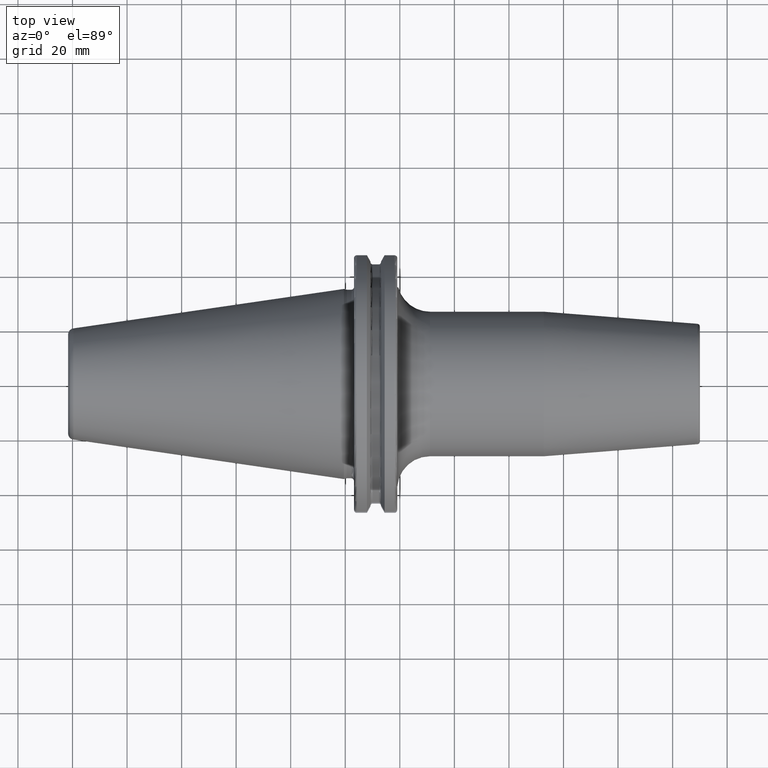
[diagram: clean part render]
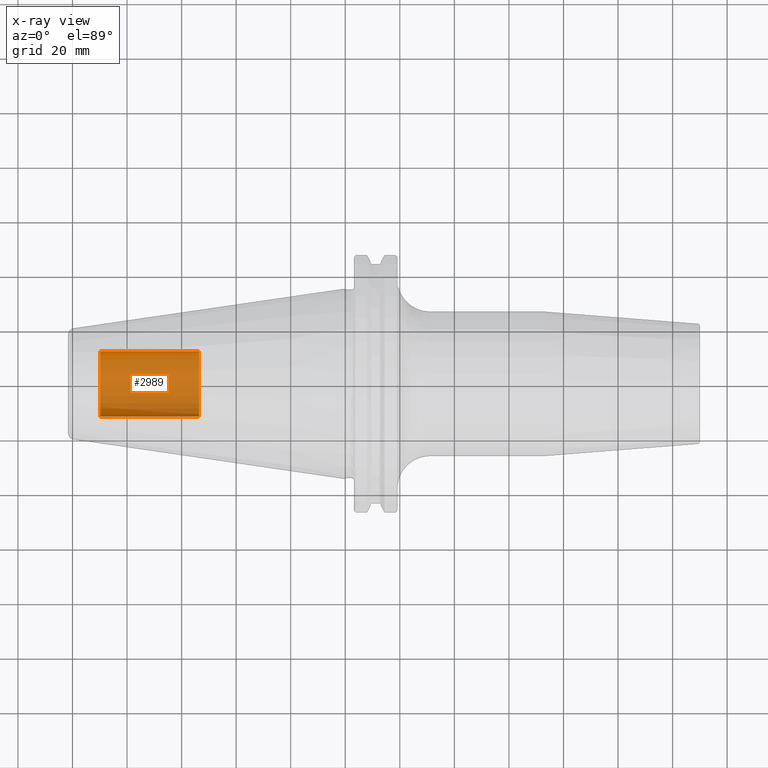
[diagram: x-ray — body ghosted, one internal face saturated and labeled with its STEP entity id]
A machine part, top view, then the same camera in x-ray: the body is ghosted and one INTERNAL B-rep face — a face not visible from any outside direction — is saturated and labeled: STEP entity #2989.
In plain terms, the highlighted cylindrical surface (edge-blend (fillet) strip) has radius 12.0032 mm, axis along (1, 0, 0).
Its self-contained STEP definition (entity closure, byte-faithful):
#2924=CARTESIAN_POINT('',(-8.985E1,0.E0,0.E0));
#2925=DIRECTION('',(-1.E0,0.E0,0.E0));
#2926=DIRECTION('',(0.E0,1.E0,0.E0));
#2927=AXIS2_PLACEMENT_3D('',#2924,#2925,#2926);
#2929=DIRECTION('',(1.E0,0.E0,0.E0));
#2930=VECTOR('',#2929,3.625E1);
#2931=CARTESIAN_POINT('',(-8.985E1,-1.200325E1,0.E0));
#2932=LINE('',#2931,#2930);
#2938=DIRECTION('',(1.E0,0.E0,0.E0));
#2939=VECTOR('',#2938,3.625E1);
#2940=CARTESIAN_POINT('',(-8.985E1,1.200325E1,0.E0));
#2941=LINE('',#2940,#2939);
#2947=CARTESIAN_POINT('',(-5.36E1,0.E0,0.E0));
#2948=DIRECTION('',(1.E0,0.E0,0.E0));
#2949=DIRECTION('',(0.E0,-1.E0,0.E0));
#2950=AXIS2_PLACEMENT_3D('',#2947,#2948,#2949);
#2962=CARTESIAN_POINT('',(-8.985E1,1.200325E1,0.E0));
#2963=CARTESIAN_POINT('',(-8.985E1,-1.200325E1,0.E0));
#2964=VERTEX_POINT('',#2962);
#2965=VERTEX_POINT('',#2963);
#2966=CARTESIAN_POINT('',(-5.36E1,1.200325E1,0.E0));
#2967=CARTESIAN_POINT('',(-5.36E1,-1.200325E1,0.E0));
#2968=VERTEX_POINT('',#2966);
#2969=VERTEX_POINT('',#2967);
#2974=CARTESIAN_POINT('',(-8.985E1,0.E0,0.E0));
#2975=DIRECTION('',(1.E0,0.E0,0.E0));
#2976=DIRECTION('',(0.E0,1.E0,0.E0));
#2977=AXIS2_PLACEMENT_3D('',#2974,#2975,#2976);
#2978=CYLINDRICAL_SURFACE('',#2977,1.200325E1);
#2980=ORIENTED_EDGE('',*,*,#2979,.T.);
#2982=ORIENTED_EDGE('',*,*,#2981,.T.);
#2984=ORIENTED_EDGE('',*,*,#2983,.T.);
#2986=ORIENTED_EDGE('',*,*,#2985,.F.);
#2987=EDGE_LOOP('',(#2980,#2982,#2984,#2986));
#2988=FACE_OUTER_BOUND('',#2987,.F.);
#2989=ADVANCED_FACE('',(#2988),#2978,.T.);
#2928=CIRCLE('',#2927,1.200325E1);
#2951=CIRCLE('',#2950,1.200325E1);
#2979=EDGE_CURVE('',#2964,#2965,#2928,.T.);
#2981=EDGE_CURVE('',#2965,#2969,#2932,.T.);
#2983=EDGE_CURVE('',#2969,#2968,#2951,.T.);
#2985=EDGE_CURVE('',#2964,#2968,#2941,.T.);